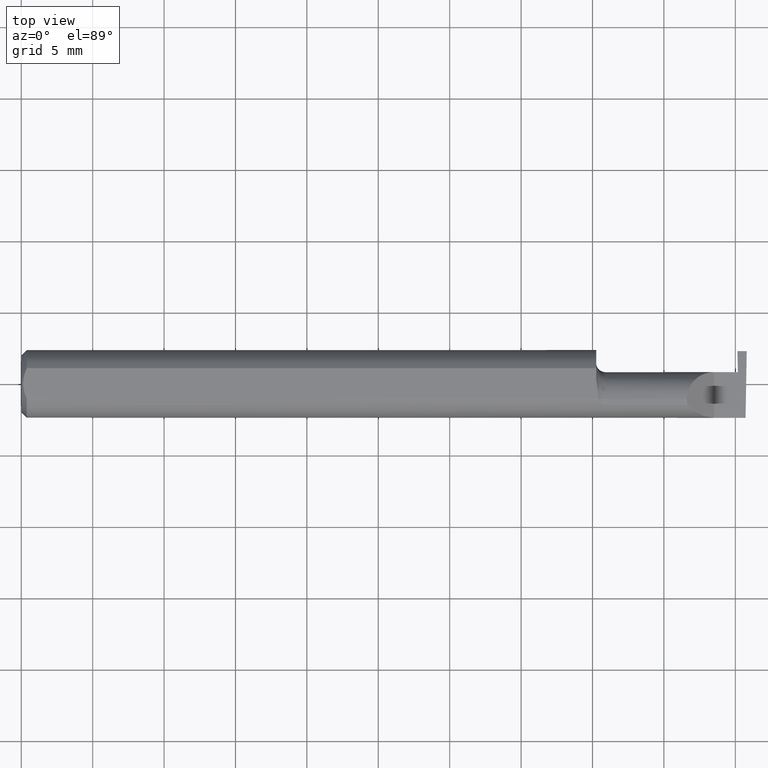
[diagram: clean part render]
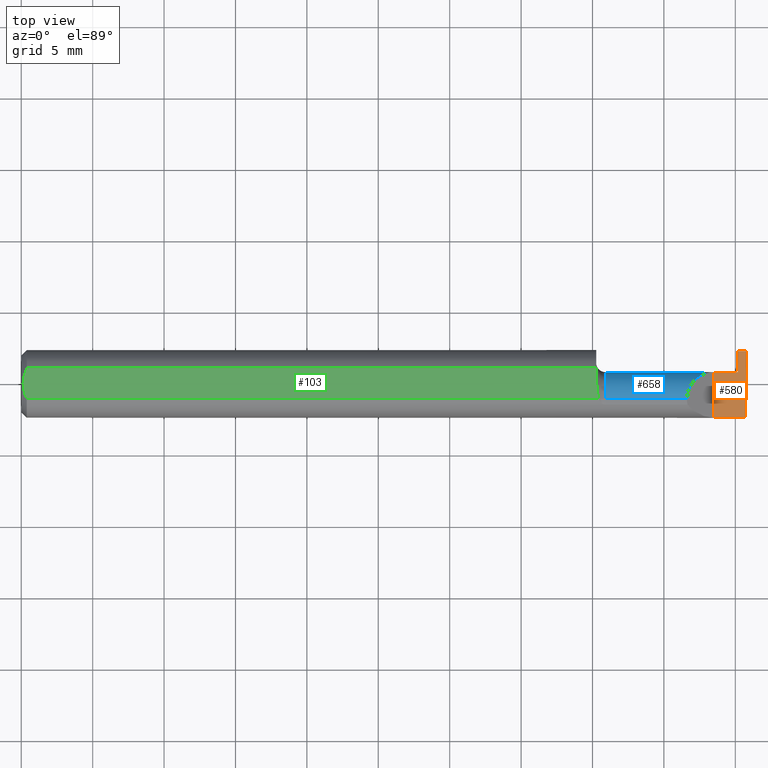
[diagram: same view with three faces highlighted in distinct colors, each labeled with its STEP entity id]
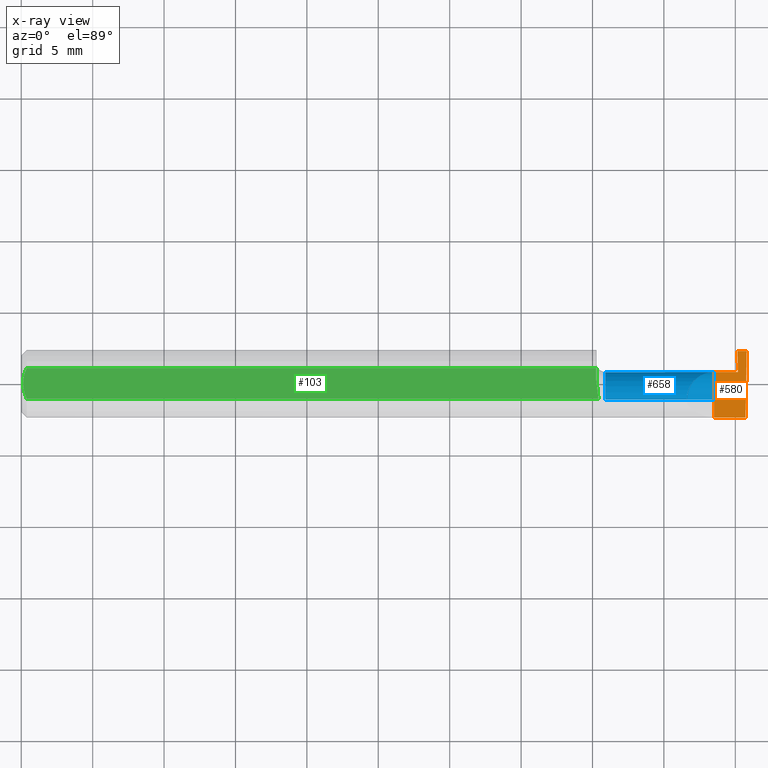
[diagram: x-ray of the same camera — body ghosted, the three highlighted faces saturated]
A machine part, top view with three faces highlighted in distinct colors.
The next image is the same camera in x-ray (body ghosted, the three faces saturated) — at least one of them is partly hidden behind the body in this view.
Their STEP definitions:

[orange] entity #580 — the highlighted planar face has unit normal (-0, 0, -1).
#22 = EDGE_CURVE ( 'NONE', #267, #262, #259, .T. ) ;
#34 = FACE_OUTER_BOUND ( 'NONE', #575, .T. ) ;
#48 = EDGE_CURVE ( 'NONE', #406, #508, #726, .T. ) ;
#50 = VERTEX_POINT ( 'NONE', #256 ) ;
#59 = DIRECTION ( 'NONE',  ( 1.000000000000000000, -0.000000000000000000, -0.000000000000000000 ) ) ;
#97 = CARTESIAN_POINT ( 'NONE',  ( 1.910000000000000142, -0.09359999999999998876, 1.102182119232621301E-17 ) ) ;
#98 = VECTOR ( 'NONE', #473, 39.37007874015748143 ) ;
#102 = ORIENTED_EDGE ( 'NONE', *, *, #571, .F. ) ;
#105 = LINE ( 'NONE', #712, #98 ) ;
#140 = CARTESIAN_POINT ( 'NONE',  ( 1.584999999999999964, 0.03240000000000000518, 5.082284216461540301E-17 ) ) ;
#144 = ORIENTED_EDGE ( 'NONE', *, *, #48, .F. ) ;
#159 = LINE ( 'NONE', #519, #253 ) ;
#165 = VECTOR ( 'NONE', #573, 39.37007874015748143 ) ;
#186 = DIRECTION ( 'NONE',  ( -0.000000000000000000, 1.000000000000000000, -0.000000000000000000 ) ) ;
#253 = VECTOR ( 'NONE', #705, 39.37007874015748143 ) ;
#256 = CARTESIAN_POINT ( 'NONE',  ( 1.975510542377208578, 0.03240000000000000518, 1.499546794530320351E-18 ) ) ;
#259 = LINE ( 'NONE', #680, #276 ) ;
#262 = VERTEX_POINT ( 'NONE', #696 ) ;
#267 = VERTEX_POINT ( 'NONE', #323 ) ;
#276 = VECTOR ( 'NONE', #59, 39.37007874015748143 ) ;
#280 = ORIENTED_EDGE ( 'NONE', *, *, #606, .F. ) ;
#322 = LINE ( 'NONE', #394, #165 ) ;
#323 = CARTESIAN_POINT ( 'NONE',  ( 1.974499999999999922, 0.09040000000000000813, -3.918869757271545852E-19 ) ) ;
#338 = DIRECTION ( 'NONE',  ( -1.224646799147358877E-16, 0.000000000000000000, -1.000000000000000000 ) ) ;
#340 = VERTEX_POINT ( 'NONE', #770 ) ;
#341 = AXIS2_PLACEMENT_3D ( 'NONE', #690, #338, #441 ) ;
#346 = VERTEX_POINT ( 'NONE', #536 ) ;
#387 = EDGE_CURVE ( 'NONE', #346, #262, #582, .T. ) ;
#394 = CARTESIAN_POINT ( 'NONE',  ( 2.999519565323743132E-32, -0.09359999999999998876, 2.449293598294717754E-16 ) ) ;
#400 = DIRECTION ( 'NONE',  ( 0.01744642479411313840, 0.9998477995484629233, -2.135106780035502721E-18 ) ) ;
#406 = VERTEX_POINT ( 'NONE', #97 ) ;
#425 = VECTOR ( 'NONE', #445, 39.37007874015748143 ) ;
#432 = EDGE_CURVE ( 'NONE', #267, #50, #105, .T. ) ;
#441 = DIRECTION ( 'NONE',  ( -1.000000000000000000, 0.000000000000000000, 1.224646799147358877E-16 ) ) ;
#444 = ORIENTED_EDGE ( 'NONE', *, *, #387, .T. ) ;
#445 = DIRECTION ( 'NONE',  ( 1.000000000000000000, 0.000000000000000000, 0.000000000000000000 ) ) ;
#463 = VECTOR ( 'NONE', #186, 39.37007874015748143 ) ;
#466 = CARTESIAN_POINT ( 'NONE',  ( 1.996678706298551820, -0.09994204647866641866, 4.067411700506801675E-19 ) ) ;
#467 = ORIENTED_EDGE ( 'NONE', *, *, #22, .F. ) ;
#473 = DIRECTION ( 'NONE',  ( 0.01742050049977392559, -0.9998482515673753346, -2.130797594924498551E-18 ) ) ;
#474 = ORIENTED_EDGE ( 'NONE', *, *, #432, .T. ) ;
#480 = LINE ( 'NONE', #140, #425 ) ;
#483 = CARTESIAN_POINT ( 'NONE',  ( 1.910000000000000142, -0.1000000000000000056, 1.102182119232621301E-17 ) ) ;
#508 = VERTEX_POINT ( 'NONE', #597 ) ;
#519 = CARTESIAN_POINT ( 'NONE',  ( 2.000000000000000000, 0.03240000000000000518, -2.143667926994697938E-33 ) ) ;
#536 = CARTESIAN_POINT ( 'NONE',  ( 1.996789369178486595, -0.09359999999634724399, 1.727064904157919157E-17 ) ) ;
#571 = EDGE_CURVE ( 'NONE', #508, #340, #480, .T. ) ;
#573 = DIRECTION ( 'NONE',  ( -1.000000000000000000, -0.000000000000000000, -0.000000000000000000 ) ) ;
#575 = EDGE_LOOP ( 'NONE', ( #280, #444, #467, #474, #764, #102, #144 ) ) ;
#580 = ADVANCED_FACE ( 'NONE', ( #34 ), #621, .F. ) ;
#582 = LINE ( 'NONE', #466, #708 ) ;
#597 = CARTESIAN_POINT ( 'NONE',  ( 1.910000000000000142, 0.03240000000000002600, 1.102182119232621301E-17 ) ) ;
#606 = EDGE_CURVE ( 'NONE', #346, #406, #322, .T. ) ;
#621 = PLANE ( 'NONE',  #341 ) ;
#680 = CARTESIAN_POINT ( 'NONE',  ( 1.899999999999999911, 0.09040000000000000813, -3.918869757271545852E-19 ) ) ;
#690 = CARTESIAN_POINT ( 'NONE',  ( 2.000000000000000000, -0.1000000000000000056, 0.000000000000000000 ) ) ;
#696 = CARTESIAN_POINT ( 'NONE',  ( 2.000000000000000444, 0.09040000000000000813, -4.722041942173579765E-17 ) ) ;
#705 = DIRECTION ( 'NONE',  ( -1.000000000000000000, 1.322082855344349921E-16, 1.224646799147358877E-16 ) ) ;
#708 = VECTOR ( 'NONE', #400, 39.37007874015748854 ) ;
#712 = CARTESIAN_POINT ( 'NONE',  ( 1.977824098549211040, -0.1003863739339453109, 2.715764672991603058E-18 ) ) ;
#725 = EDGE_CURVE ( 'NONE', #50, #340, #159, .T. ) ;
#726 = LINE ( 'NONE', #483, #463 ) ;
#764 = ORIENTED_EDGE ( 'NONE', *, *, #725, .T. ) ;
#770 = CARTESIAN_POINT ( 'NONE',  ( 1.974499999999999922, 0.03240000000000000518, 5.082264648574021969E-17 ) ) ;

[blue] entity #658 — the highlighted cylindrical surface (edge-blend (fillet) strip) has radius 1.905 mm, axis along (-1, -0, -0).
#5 = CARTESIAN_POINT ( 'NONE',  ( 1.977080687037212847, 0.02094495418688679597, -0.05333678008583642161 ) ) ;
#6 = ORIENTED_EDGE ( 'NONE', *, *, #571, .T. ) ;
#27 = CARTESIAN_POINT ( 'NONE',  ( 1.835000000000000409, -0.04259999999999998510, 0.07499999999999999722 ) ) ;
#38 = EDGE_CURVE ( 'NONE', #534, #451, #109, .T. ) ;
#53 = EDGE_CURVE ( 'NONE', #93, #147, #95, .T. ) ;
#67 = EDGE_CURVE ( 'NONE', #663, #93, #672, .T. ) ;
#69 = CIRCLE ( 'NONE', #206, 0.07499999999999999722 ) ;
#78 = FACE_OUTER_BOUND ( 'NONE', #326, .T. ) ;
#93 = VERTEX_POINT ( 'NONE', #603 ) ;
#95 = CIRCLE ( 'NONE', #120, 0.07499999999999999722 ) ;
#109 =( BOUNDED_CURVE ( )  B_SPLINE_CURVE ( 3, ( #426, #248, #5, #252 ),
 .UNSPECIFIED., .F., .F. ) 
 B_SPLINE_CURVE_WITH_KNOTS ( ( 4, 4 ),
 ( 3.140983202202990654, 4.455205321888860759 ),
 .UNSPECIFIED. ) 
 CURVE ( )  GEOMETRIC_REPRESENTATION_ITEM ( )  RATIONAL_B_SPLINE_CURVE ( ( 1.000000000000000000, 0.8611734602017915297, 0.8611734602017915297, 1.000000000000000000 ) ) 
 REPRESENTATION_ITEM ( '' )  );
#115 = DIRECTION ( 'NONE',  ( -1.000000000000000000, -0.000000000000000000, -0.000000000000000000 ) ) ;
#116 = VERTEX_POINT ( 'NONE', #554 ) ;
#120 = AXIS2_PLACEMENT_3D ( 'NONE', #481, #488, #421 ) ;
#140 = CARTESIAN_POINT ( 'NONE',  ( 1.584999999999999964, 0.03240000000000000518, 5.082284216461540301E-17 ) ) ;
#142 = CARTESIAN_POINT ( 'NONE',  ( 1.835000000000000409, -0.04259999999999998510, 0.07499999999999999722 ) ) ;
#147 = VERTEX_POINT ( 'NONE', #494 ) ;
#151 = AXIS2_PLACEMENT_3D ( 'NONE', #324, #566, #561 ) ;
#166 = ORIENTED_EDGE ( 'NONE', *, *, #67, .F. ) ;
#196 = CARTESIAN_POINT ( 'NONE',  ( 1.584999999999999964, -0.04259999999999997816, -0.07499999999999999722 ) ) ;
#205 = DIRECTION ( 'NONE',  ( -1.000000000000000000, -0.000000000000000000, -0.000000000000000000 ) ) ;
#206 = AXIS2_PLACEMENT_3D ( 'NONE', #246, #429, #665 ) ;
#210 = CARTESIAN_POINT ( 'NONE',  ( 1.835000000000000187, 0.001333982822017879596, 0.07499999999999998335 ) ) ;
#242 = EDGE_CURVE ( 'NONE', #451, #116, #735, .T. ) ;
#246 = CARTESIAN_POINT ( 'NONE',  ( 1.974499999999999922, -0.04259999999999998510, 0.000000000000000000 ) ) ;
#248 = CARTESIAN_POINT ( 'NONE',  ( 1.978214534726833840, -0.007134900077140376128, -0.07499999999999999722 ) ) ;
#252 = CARTESIAN_POINT ( 'NONE',  ( 1.975284083932824064, 0.02994487577554239693, -0.01903262984222201318 ) ) ;
#274 = CARTESIAN_POINT ( 'NONE',  ( 1.975027797685394937, 0.03157410243558826657, -0.01282266061343004249 ) ) ;
#275 = ORIENTED_EDGE ( 'NONE', *, *, #456, .T. ) ;
#324 = CARTESIAN_POINT ( 'NONE',  ( 1.584999999999999964, -0.04259999999999998510, 0.000000000000000000 ) ) ;
#326 = EDGE_LOOP ( 'NONE', ( #594, #275, #462, #166, #416, #6, #587, #537 ) ) ;
#330 = CYLINDRICAL_SURFACE ( 'NONE', #151, 0.07499999999999999722 ) ;
#340 = VERTEX_POINT ( 'NONE', #770 ) ;
#388 = CARTESIAN_POINT ( 'NONE',  ( 1.866066017177982594, 0.03240000000000000518, 0.04393398282201787380 ) ) ;
#389 = CARTESIAN_POINT ( 'NONE',  ( 1.974499999999999922, 0.03239999167003452391, -3.534818988851093574E-05 ) ) ;
#398 = CARTESIAN_POINT ( 'NONE',  ( 1.974765001967077938, 0.03239696580267939496, -0.006455479666460864005 ) ) ;
#416 = ORIENTED_EDGE ( 'NONE', *, *, #610, .T. ) ;
#421 = DIRECTION ( 'NONE',  ( 0.000000000000000000, 0.000000000000000000, 1.000000000000000000 ) ) ;
#425 = VECTOR ( 'NONE', #445, 39.37007874015748143 ) ;
#426 = CARTESIAN_POINT ( 'NONE',  ( 1.978213402547462474, -0.04260000000000001286, -0.07499999999999998335 ) ) ;
#429 = DIRECTION ( 'NONE',  ( -1.000000000000000000, -0.000000000000000000, -0.000000000000000000 ) ) ;
#433 = CARTESIAN_POINT ( 'NONE',  ( 1.975284083932824064, 0.02994487577554239693, -0.01903262984222201318 ) ) ;
#445 = DIRECTION ( 'NONE',  ( 1.000000000000000000, 0.000000000000000000, 0.000000000000000000 ) ) ;
#451 = VERTEX_POINT ( 'NONE', #433 ) ;
#456 = EDGE_CURVE ( 'NONE', #534, #147, #492, .T. ) ;
#462 = ORIENTED_EDGE ( 'NONE', *, *, #53, .F. ) ;
#480 = LINE ( 'NONE', #140, #425 ) ;
#481 = CARTESIAN_POINT ( 'NONE',  ( 1.609999999999999654, -0.04259999999999998510, 0.000000000000000000 ) ) ;
#488 = DIRECTION ( 'NONE',  ( -1.000000000000000000, -0.000000000000000000, -0.000000000000000000 ) ) ;
#492 = LINE ( 'NONE', #196, #553 ) ;
#494 = CARTESIAN_POINT ( 'NONE',  ( 1.609999999999999654, -0.04259999999999997122, -0.07499999999999999722 ) ) ;
#498 = CARTESIAN_POINT ( 'NONE',  ( 1.584999999999999964, -0.04259999999999998510, 0.07499999999999999722 ) ) ;
#508 = VERTEX_POINT ( 'NONE', #597 ) ;
#510 = CARTESIAN_POINT ( 'NONE',  ( 1.975284083932824064, 0.02994487577554239693, -0.01903262984222201318 ) ) ;
#524 = EDGE_CURVE ( 'NONE', #340, #116, #69, .T. ) ;
#534 = VERTEX_POINT ( 'NONE', #670 ) ;
#537 = ORIENTED_EDGE ( 'NONE', *, *, #242, .F. ) ;
#553 = VECTOR ( 'NONE', #115, 39.37007874015748143 ) ;
#554 = CARTESIAN_POINT ( 'NONE',  ( 1.974499999999999922, 0.03239999167003452391, -3.534818988851093574E-05 ) ) ;
#561 = DIRECTION ( 'NONE',  ( 0.000000000000000000, 0.000000000000000000, 1.000000000000000000 ) ) ;
#562 = VECTOR ( 'NONE', #205, 39.37007874015748143 ) ;
#566 = DIRECTION ( 'NONE',  ( -1.000000000000000000, -0.000000000000000000, -0.000000000000000000 ) ) ;
#571 = EDGE_CURVE ( 'NONE', #508, #340, #480, .T. ) ;
#587 = ORIENTED_EDGE ( 'NONE', *, *, #524, .T. ) ;
#594 = ORIENTED_EDGE ( 'NONE', *, *, #38, .F. ) ;
#597 = CARTESIAN_POINT ( 'NONE',  ( 1.910000000000000142, 0.03240000000000002600, 1.102182119232621301E-17 ) ) ;
#603 = CARTESIAN_POINT ( 'NONE',  ( 1.609999999999999654, -0.04259999999999997816, 0.07499999999999999722 ) ) ;
#610 = EDGE_CURVE ( 'NONE', #663, #508, #652, .T. ) ;
#637 = CARTESIAN_POINT ( 'NONE',  ( 1.910000000000000142, 0.03240000000000002600, 1.102182119232621301E-17 ) ) ;
#652 =( BOUNDED_CURVE ( )  B_SPLINE_CURVE ( 3, ( #142, #210, #388, #637 ),
 .UNSPECIFIED., .F., .T. ) 
 B_SPLINE_CURVE_WITH_KNOTS ( ( 4, 4 ),
 ( 0.000000000000000000, 1.570796326794896558 ),
 .UNSPECIFIED. ) 
 CURVE ( )  GEOMETRIC_REPRESENTATION_ITEM ( )  RATIONAL_B_SPLINE_CURVE ( ( 1.000000000000000000, 0.8047378541243649375, 0.8047378541243649375, 1.000000000000000000 ) ) 
 REPRESENTATION_ITEM ( '' )  );
#658 = ADVANCED_FACE ( 'NONE', ( #78 ), #330, .T. ) ;
#663 = VERTEX_POINT ( 'NONE', #27 ) ;
#665 = DIRECTION ( 'NONE',  ( 0.000000000000000000, 0.000000000000000000, 1.000000000000000000 ) ) ;
#670 = CARTESIAN_POINT ( 'NONE',  ( 1.978213402547462474, -0.04260000000000001286, -0.07499999999999998335 ) ) ;
#672 = LINE ( 'NONE', #498, #562 ) ;
#735 =( BOUNDED_CURVE ( )  B_SPLINE_CURVE ( 3, ( #510, #274, #398, #389 ),
 .UNSPECIFIED., .F., .F. ) 
 B_SPLINE_CURVE_WITH_KNOTS ( ( 4, 4 ),
 ( 4.455205321888864312, 4.711308219781928486 ),
 .UNSPECIFIED. ) 
 CURVE ( )  GEOMETRIC_REPRESENTATION_ITEM ( )  RATIONAL_B_SPLINE_CURVE ( ( 1.000000000000000000, 0.9945417399294780303, 0.9945417399294780303, 1.000000000000000000 ) ) 
 REPRESENTATION_ITEM ( '' )  );
#770 = CARTESIAN_POINT ( 'NONE',  ( 1.974499999999999922, 0.03240000000000000518, 5.082264648574021969E-17 ) ) ;

[green] entity #103 — the highlighted planar face has unit normal (0, -0, 1).
#12 = ORIENTED_EDGE ( 'NONE', *, *, #13, .T. ) ;
#13 = EDGE_CURVE ( 'NONE', #521, #623, #548, .T. ) ;
#29 = EDGE_LOOP ( 'NONE', ( #235, #99, #688, #12, #766, #704 ) ) ;
#30 = CARTESIAN_POINT ( 'NONE',  ( 1.589570820222980130, -0.02392027542784326555, 0.08360000000000000764 ) ) ;
#35 = AXIS2_PLACEMENT_3D ( 'NONE', #666, #439, #62 ) ;
#42 = CARTESIAN_POINT ( 'NONE',  ( 0.005981829149300634495, 0.01454044632356570055, 0.08359999999999997988 ) ) ;
#44 = B_SPLINE_CURVE_WITH_KNOTS ( 'NONE', 3,
 ( #715, #348, #342, #42, #405, #408 ),
 .UNSPECIFIED., .F., .F.,
 ( 4, 2, 4 ),
 ( 0.001518921481343302573, 0.002066509374312902950, 0.002614097267282503544 ),
 .UNSPECIFIED. ) ;
#45 = B_SPLINE_CURVE_WITH_KNOTS ( 'NONE', 3,
 ( #335, #569, #30, #699, #272, #512 ),
 .UNSPECIFIED., .F., .F.,
 ( 4, 2, 4 ),
 ( 0.009672910729349781800, 0.01035804079918456987, 0.01104317086901935793 ),
 .UNSPECIFIED. ) ;
#47 = CARTESIAN_POINT ( 'NONE',  ( 0.01499999999999999944, -0.04209513035969836975, 0.08359999999999999376 ) ) ;
#62 = DIRECTION ( 'NONE',  ( 1.000000000000000000, 0.000000000000000000, -0.000000000000000000 ) ) ;
#64 = CARTESIAN_POINT ( 'NONE',  ( 0.000000000000000000, 0.04209513035969836975, 0.08359999999999999376 ) ) ;
#99 = ORIENTED_EDGE ( 'NONE', *, *, #673, .T. ) ;
#103 = ADVANCED_FACE ( 'NONE', ( #676 ), #130, .T. ) ;
#108 = LINE ( 'NONE', #586, #503 ) ;
#113 = CARTESIAN_POINT ( 'NONE',  ( 0.005975039161239314132, -0.01453776427033151748, 0.08360000000000000764 ) ) ;
#130 = PLANE ( 'NONE',  #35 ) ;
#141 = VERTEX_POINT ( 'NONE', #541 ) ;
#164 = CARTESIAN_POINT ( 'NONE',  ( 0.004999999999999977553, -0.007328888879231072045, 0.08359999999999997988 ) ) ;
#204 = CARTESIAN_POINT ( 'NONE',  ( 1.591129652885479029, -0.04209513035970094408, 0.08359999999999999376 ) ) ;
#211 = VERTEX_POINT ( 'NONE', #622 ) ;
#235 = ORIENTED_EDGE ( 'NONE', *, *, #774, .T. ) ;
#245 = DIRECTION ( 'NONE',  ( -1.000000000000000000, -0.000000000000000000, -0.000000000000000000 ) ) ;
#272 = CARTESIAN_POINT ( 'NONE',  ( 1.584999999999999520, 0.003280657920457031966, 0.08359999999999999376 ) ) ;
#288 = LINE ( 'NONE', #344, #318 ) ;
#297 = CARTESIAN_POINT ( 'NONE',  ( 0.01499999999999999944, -0.04209513035969836975, 0.08359999999999999376 ) ) ;
#318 = VECTOR ( 'NONE', #411, 39.37007874015748143 ) ;
#321 = EDGE_CURVE ( 'NONE', #211, #343, #635, .T. ) ;
#331 = EDGE_CURVE ( 'NONE', #623, #211, #44, .T. ) ;
#334 = EDGE_CURVE ( 'NONE', #141, #521, #108, .T. ) ;
#335 = CARTESIAN_POINT ( 'NONE',  ( 1.591129652885479029, -0.04209513035970094408, 0.08359999999999999376 ) ) ;
#342 = CARTESIAN_POINT ( 'NONE',  ( 0.009492654797564227878, 0.02859466010166631170, 0.08360000000000000764 ) ) ;
#343 = VERTEX_POINT ( 'NONE', #47 ) ;
#344 = CARTESIAN_POINT ( 'NONE',  ( 0.000000000000000000, -0.04209513035969836975, 0.08359999999999999376 ) ) ;
#348 = CARTESIAN_POINT ( 'NONE',  ( 0.01203648650249644972, 0.03550565407121128447, 0.08359999999999997988 ) ) ;
#363 = VECTOR ( 'NONE', #245, 39.37007874015748143 ) ;
#405 = CARTESIAN_POINT ( 'NONE',  ( 0.004999999999999975818, 0.007308422719211830898, 0.08359999999999999376 ) ) ;
#408 = CARTESIAN_POINT ( 'NONE',  ( 0.004999999999999986226, 1.025183015402604432E-17, 0.08359999999999999376 ) ) ;
#411 = DIRECTION ( 'NONE',  ( 1.000000000000000000, 0.000000000000000000, 0.000000000000000000 ) ) ;
#412 = CARTESIAN_POINT ( 'NONE',  ( 0.009539353699420717939, -0.02875682547511376405, 0.08359999999999997988 ) ) ;
#439 = DIRECTION ( 'NONE',  ( 0.000000000000000000, -0.000000000000000000, 1.000000000000000000 ) ) ;
#503 = VECTOR ( 'NONE', #765, 39.37007874015748143 ) ;
#512 = CARTESIAN_POINT ( 'NONE',  ( 1.584999999999999520, 0.01227294415283364248, 0.08359999999999999376 ) ) ;
#521 = VERTEX_POINT ( 'NONE', #732 ) ;
#533 = CARTESIAN_POINT ( 'NONE',  ( 0.01206089165507020187, -0.03555991978469316694, 0.08359999999999999376 ) ) ;
#541 = CARTESIAN_POINT ( 'NONE',  ( 1.584999999999999520, 0.01227294415283364248, 0.08359999999999999376 ) ) ;
#548 = LINE ( 'NONE', #64, #363 ) ;
#569 = CARTESIAN_POINT ( 'NONE',  ( 1.591082007218903360, -0.03301619840524110810, 0.08359999999999997988 ) ) ;
#586 = CARTESIAN_POINT ( 'NONE',  ( 1.584999999999999520, -0.09360000000000003040, 0.08359999999999999376 ) ) ;
#604 = VERTEX_POINT ( 'NONE', #204 ) ;
#622 = CARTESIAN_POINT ( 'NONE',  ( 0.004999999999999986226, 1.025183015402604432E-17, 0.08359999999999999376 ) ) ;
#623 = VERTEX_POINT ( 'NONE', #631 ) ;
#631 = CARTESIAN_POINT ( 'NONE',  ( 0.01499999999999999598, 0.04209513035969836975, 0.08359999999999999376 ) ) ;
#635 = B_SPLINE_CURVE_WITH_KNOTS ( 'NONE', 3,
 ( #653, #164, #113, #412, #533, #297 ),
 .UNSPECIFIED., .F., .F.,
 ( 4, 2, 4 ),
 ( 0.002614097267282503544, 0.003163218599391118963, 0.003712339931499734381 ),
 .UNSPECIFIED. ) ;
#653 = CARTESIAN_POINT ( 'NONE',  ( 0.004999999999999986226, 1.025183015402604432E-17, 0.08359999999999999376 ) ) ;
#666 = CARTESIAN_POINT ( 'NONE',  ( 2.000000000000000000, -0.09360000000000003040, 0.08359999999999999376 ) ) ;
#673 = EDGE_CURVE ( 'NONE', #604, #141, #45, .T. ) ;
#676 = FACE_OUTER_BOUND ( 'NONE', #29, .T. ) ;
#688 = ORIENTED_EDGE ( 'NONE', *, *, #334, .T. ) ;
#699 = CARTESIAN_POINT ( 'NONE',  ( 1.586463898467976641, -0.005727447913487648465, 0.08359999999999997988 ) ) ;
#704 = ORIENTED_EDGE ( 'NONE', *, *, #321, .T. ) ;
#715 = CARTESIAN_POINT ( 'NONE',  ( 0.01499999999999999598, 0.04209513035969836975, 0.08359999999999999376 ) ) ;
#732 = CARTESIAN_POINT ( 'NONE',  ( 1.584999999999999520, 0.04209513035969834893, 0.08359999999999999376 ) ) ;
#765 = DIRECTION ( 'NONE',  ( -0.000000000000000000, 1.000000000000000000, 0.000000000000000000 ) ) ;
#766 = ORIENTED_EDGE ( 'NONE', *, *, #331, .T. ) ;
#774 = EDGE_CURVE ( 'NONE', #343, #604, #288, .T. ) ;